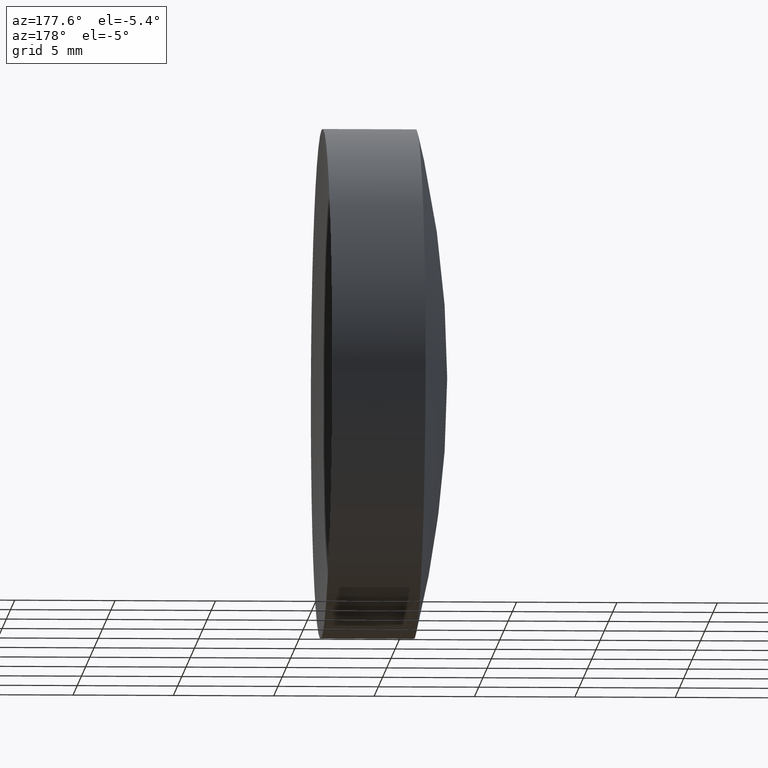
[diagram: clean part render]
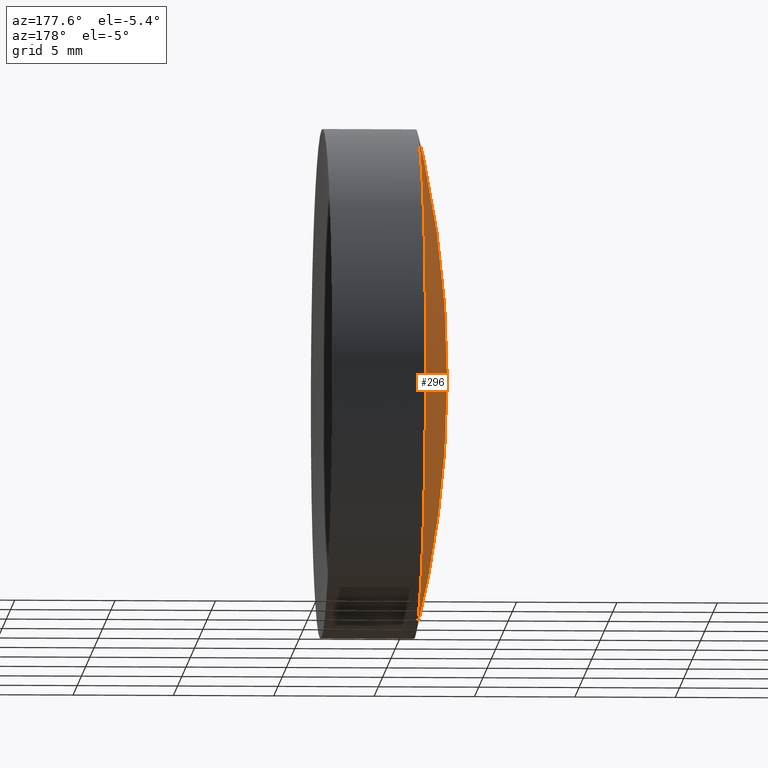
[diagram: same view with one face highlighted and labeled with its STEP entity id]
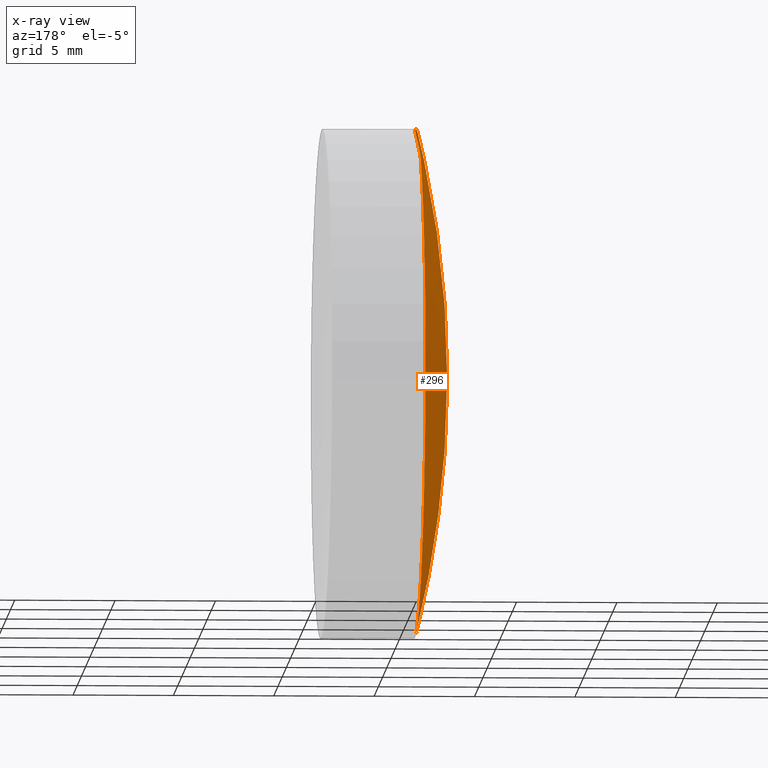
[diagram: x-ray of the same camera — body ghosted, the highlighted face saturated]
A machine part, auxiliary view. The second image highlights one B-rep face of the part: STEP entity #296.
The next image is the same camera in x-ray: the body ghosted, the highlighted face saturated — about 0% of this face is hidden behind the body in this view.
In plain terms, the highlighted spherical surface has radius 52 mm.
Its self-contained STEP definition (entity closure, byte-faithful):
#5 = EDGE_CURVE ( 'NONE', #327, #46, #310, .T. ) ;
#15 = AXIS2_PLACEMENT_3D ( 'NONE', #262, #101, #289 ) ;
#29 = DIRECTION ( 'NONE',  ( 0.0000000000000000000, -1.000000000000000000, -1.224646799147353200E-016 ) ) ;
#39 = ORIENTED_EDGE ( 'NONE', *, *, #302, .T. ) ;
#46 = VERTEX_POINT ( 'NONE', #192 ) ;
#58 = ORIENTED_EDGE ( 'NONE', *, *, #233, .T. ) ;
#59 = CARTESIAN_POINT ( 'NONE',  ( 334.0169874091439500, -1.555301434917139600E-015, 12.70000000000001900 ) ) ;
#62 = CARTESIAN_POINT ( 'NONE',  ( 384.4422786824721900, 0.0000000000000000000, 8.273825033181206100E-015 ) ) ;
#76 = DIRECTION ( 'NONE',  ( -0.0000000000000000000, -1.000000000000000000, -0.0000000000000000000 ) ) ;
#84 = DIRECTION ( 'NONE',  ( -1.000000000000000000, -0.0000000000000000000, -0.0000000000000000000 ) ) ;
#94 = AXIS2_PLACEMENT_3D ( 'NONE', #240, #84, #112 ) ;
#101 = DIRECTION ( 'NONE',  ( 0.0000000000000000000, 1.000000000000000000, -0.0000000000000000000 ) ) ;
#112 = DIRECTION ( 'NONE',  ( 0.0000000000000000000, 0.0000000000000000000, 1.000000000000000000 ) ) ;
#146 = AXIS2_PLACEMENT_3D ( 'NONE', #177, #76, #323 ) ;
#148 = CARTESIAN_POINT ( 'NONE',  ( 334.0169874091439500, 0.0000000000000000000, -12.70000000000001000 ) ) ;
#164 = DIRECTION ( 'NONE',  ( 0.0000000000000000000, 1.224646799147353200E-016, -1.000000000000000000 ) ) ;
#170 = SPHERICAL_SURFACE ( 'NONE', #146, 51.99999999999998600 ) ;
#177 = CARTESIAN_POINT ( 'NONE',  ( 384.4422786824721900, 0.0000000000000000000, 8.273825033181206100E-015 ) ) ;
#180 = VERTEX_POINT ( 'NONE', #148 ) ;
#192 = CARTESIAN_POINT ( 'NONE',  ( 332.4422786824722500, 0.0000000000000000000, 5.089743355398088300E-015 ) ) ;
#203 = EDGE_LOOP ( 'NONE', ( #265, #39, #58 ) ) ;
#233 = EDGE_CURVE ( 'NONE', #180, #46, #300, .T. ) ;
#240 = CARTESIAN_POINT ( 'NONE',  ( 334.0169874091439500, 0.0000000000000000000, 0.0000000000000000000 ) ) ;
#262 = CARTESIAN_POINT ( 'NONE',  ( 384.4422786824721900, 0.0000000000000000000, 8.273825033181206100E-015 ) ) ;
#265 = ORIENTED_EDGE ( 'NONE', *, *, #5, .F. ) ;
#286 = CIRCLE ( 'NONE', #94, 12.70000000000000600 ) ;
#287 = AXIS2_PLACEMENT_3D ( 'NONE', #62, #29, #164 ) ;
#289 = DIRECTION ( 'NONE',  ( 0.0000000000000000000, 0.0000000000000000000, 1.000000000000000000 ) ) ;
#296 = ADVANCED_FACE ( 'NONE', ( #330 ), #170, .T. ) ;
#300 = CIRCLE ( 'NONE', #15, 51.99999999999998600 ) ;
#302 = EDGE_CURVE ( 'NONE', #327, #180, #286, .T. ) ;
#310 = CIRCLE ( 'NONE', #287, 51.99999999999998600 ) ;
#323 = DIRECTION ( 'NONE',  ( 0.0000000000000000000, 0.0000000000000000000, -1.000000000000000000 ) ) ;
#327 = VERTEX_POINT ( 'NONE', #59 ) ;
#330 = FACE_OUTER_BOUND ( 'NONE', #203, .T. ) ;